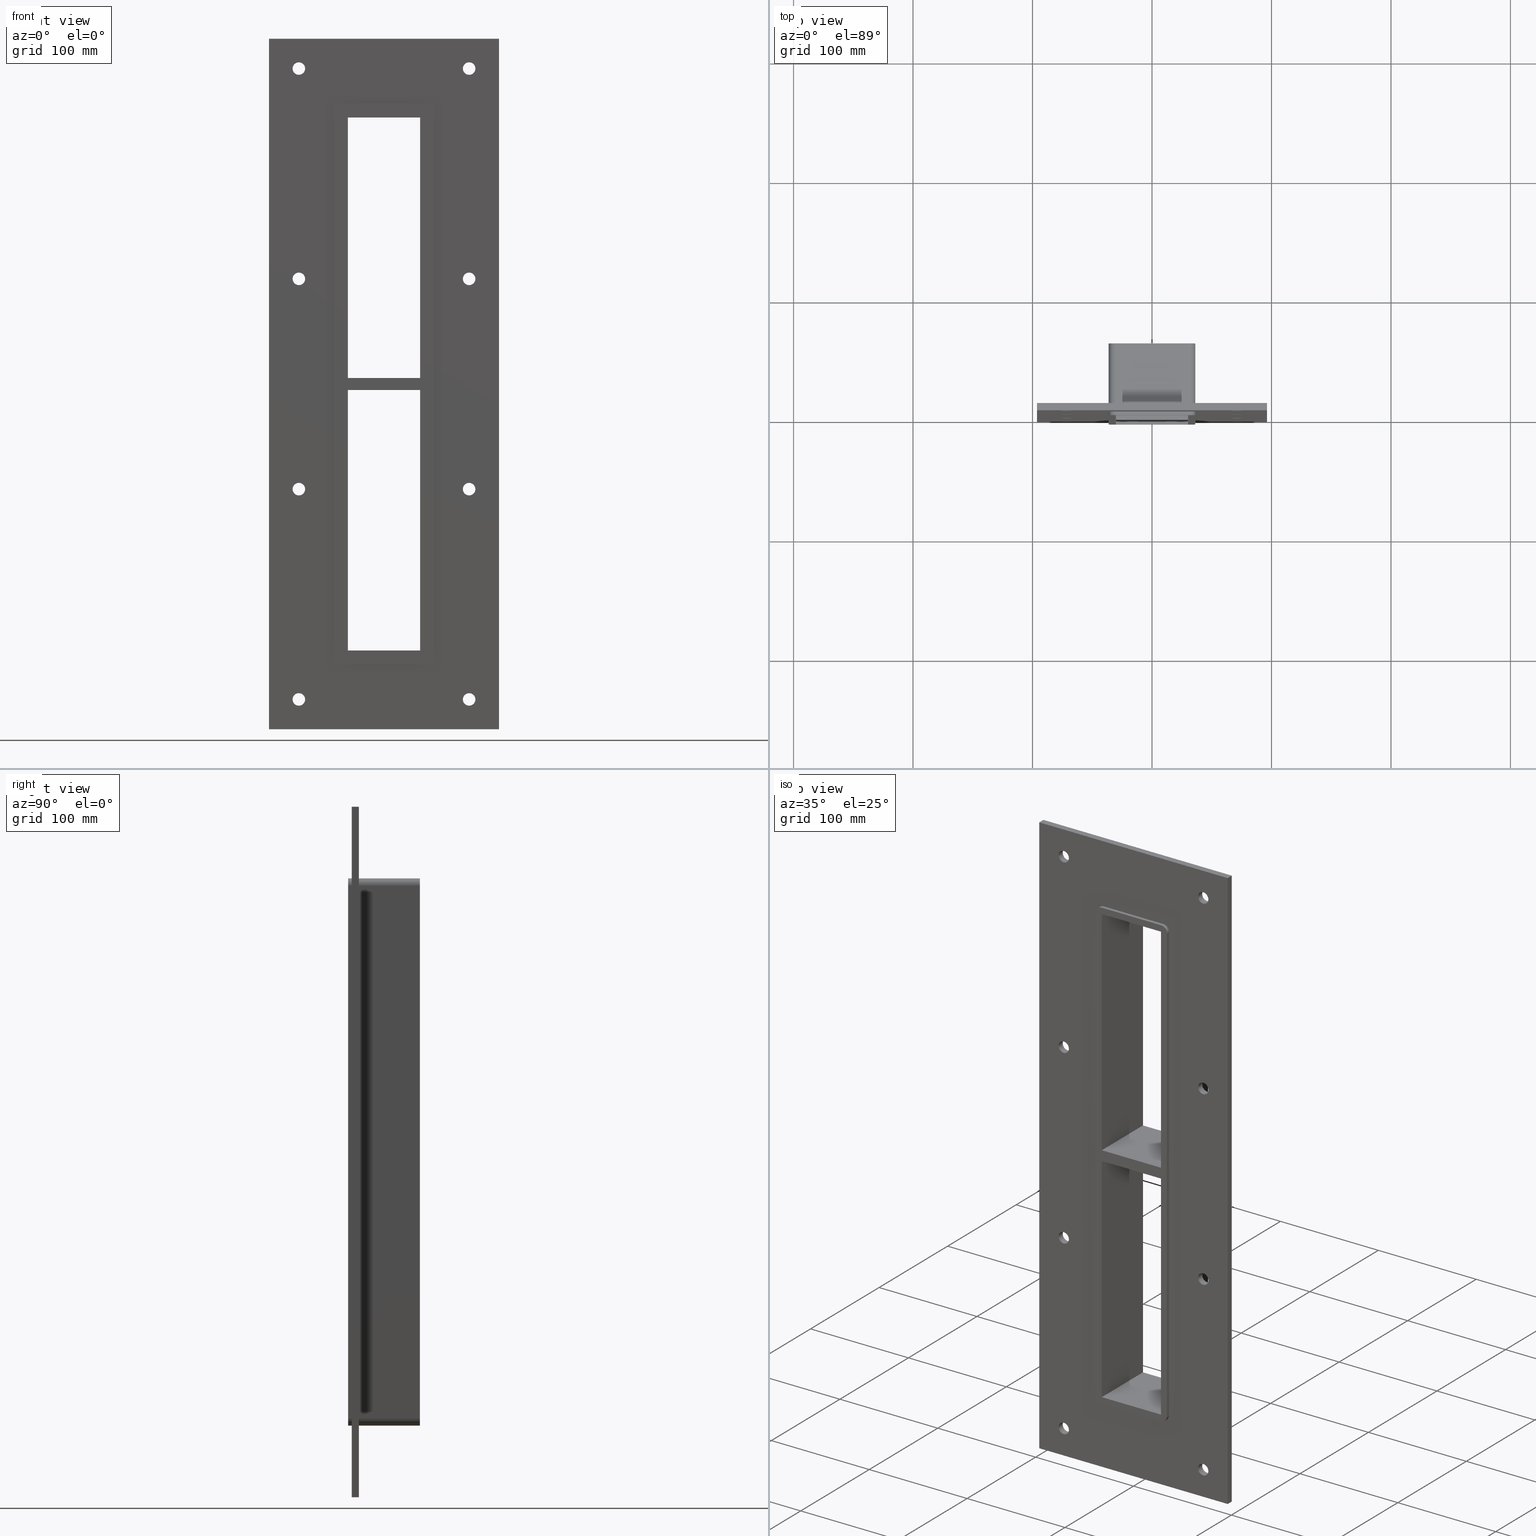
[diagram: canonical four-view strip — front | top / right | iso, engineering-drawing reading convention]
A machine part, canonical four-view strip (front | top / right | iso — engineering-drawing reading convention). The complete STEP part file that produces these views, byte-faithful:
ISO-10303-21;
HEADER;
/****************************************************************
 * Generated by software with PDElib inside                    *
 * PDElib Version v51a, created Wed 11/30/2011                  *
 * ITI Transcendata (http://www.transcendata.com/)              *
 ****************************************************************/
FILE_DESCRIPTION((''),'2;1');
FILE_NAME('L:\\roxtec-se\\Projects\\Ongoing_Projects\\12403 Transit Designer\\Product-data\\Product Data\\Reviwed & Approved\\Review\\GH\\STEP\\GH5+5X1.stp','2015-02-20T11:31:12',('se-emikul'),(''),'Autodesk Inventor 2013','Autodesk Inventor 2013','');
FILE_SCHEMA(('AUTOMOTIVE_DESIGN { 1 0 10303 214 1 1 1 1 }'));
ENDSEC;
DATA;
#5=APPLICATION_CONTEXT('automotive design');
#6=APPLICATION_PROTOCOL_DEFINITION('International Standard','automotive_design',2001,#5);
#7=PRODUCT_CONTEXT('',#5,'mechanical');
#8=PRODUCT('GH5+5X1','GH5+5X1',$,(#7));
#9=PRODUCT_RELATED_PRODUCT_CATEGORY('part',$,(#8));
#10=PRODUCT_DEFINITION_FORMATION('',$,#8);
#11=PRODUCT_DEFINITION_CONTEXT('part definition',#5,'design');
#12=PRODUCT_DEFINITION('',$,#10,#11);
#18=(NAMED_UNIT(*)PLANE_ANGLE_UNIT()SI_UNIT($,.RADIAN.));
#19=DIMENSIONAL_EXPONENTS(0.0,0.0,0.0,0.0,0.0,0.0,0.0);
#20=PLANE_ANGLE_MEASURE_WITH_UNIT(PLANE_ANGLE_MEASURE(0.0174532925),#18);
#24=(CONVERSION_BASED_UNIT('DEGREE',#20)NAMED_UNIT(#19)PLANE_ANGLE_UNIT());
#28=(NAMED_UNIT(*)SI_UNIT($,.STERADIAN.)SOLID_ANGLE_UNIT());
#32=(LENGTH_UNIT()NAMED_UNIT(*)SI_UNIT(.MILLI.,.METRE.));
#34=UNCERTAINTY_MEASURE_WITH_UNIT(LENGTH_MEASURE(0.01),#32,'DISTANCE_ACCURACY_VALUE','');
#36=(GEOMETRIC_REPRESENTATION_CONTEXT(3)GLOBAL_UNCERTAINTY_ASSIGNED_CONTEXT((#34))GLOBAL_UNIT_ASSIGNED_CONTEXT((#24,#28,#32))REPRESENTATION_CONTEXT('None','None'));
#37=AXIS2_PLACEMENT_3D('',#38,#39,#40);
#38=CARTESIAN_POINT('',(0.0,0.0,0.0));
#39=DIRECTION('',(0.0,0.0,1.0));
#40=DIRECTION('',(1.0,0.0,0.0));
#41=SHAPE_REPRESENTATION('',(#37),#36);
#42=PRODUCT_DEFINITION_SHAPE('','',#12);
#43=SHAPE_DEFINITION_REPRESENTATION(#42,#41);
#49=(NAMED_UNIT(*)PLANE_ANGLE_UNIT()SI_UNIT($,.RADIAN.));
#50=DIMENSIONAL_EXPONENTS(0.0,0.0,0.0,0.0,0.0,0.0,0.0);
#51=PLANE_ANGLE_MEASURE_WITH_UNIT(PLANE_ANGLE_MEASURE(0.0174532925),#49);
#55=(CONVERSION_BASED_UNIT('DEGREE',#51)NAMED_UNIT(#50)PLANE_ANGLE_UNIT());
#59=(NAMED_UNIT(*)SI_UNIT($,.STERADIAN.)SOLID_ANGLE_UNIT());
#63=(LENGTH_UNIT()NAMED_UNIT(*)SI_UNIT(.MILLI.,.METRE.));
#65=UNCERTAINTY_MEASURE_WITH_UNIT(LENGTH_MEASURE(0.000001),#63,'DISTANCE_ACCURACY_VALUE','');
#67=(GEOMETRIC_REPRESENTATION_CONTEXT(3)GLOBAL_UNCERTAINTY_ASSIGNED_CONTEXT((#65))GLOBAL_UNIT_ASSIGNED_CONTEXT((#55,#59,#63))REPRESENTATION_CONTEXT('','3D'));
#68=CARTESIAN_POINT('',(-71.250000000000128,612.16031397012341,-264.00000000000006));
#69=DIRECTION('',(0.0,-1.0,0.0));
#70=DIRECTION('',(1.0,0.0,0.0));
#71=AXIS2_PLACEMENT_3D('',#68,#69,#70);
#72=CYLINDRICAL_SURFACE('',#71,5.25);
#73=CARTESIAN_POINT('',(-76.500000000000128,6.000000000000014,-264.00000000000006));
#74=VERTEX_POINT('',#73);
#75=CARTESIAN_POINT('',(-71.250000000000128,6.000000000000014,-264.00000000000006));
#76=DIRECTION('',(0.0,-1.0,0.0));
#77=DIRECTION('',(1.0,0.0,0.0));
#78=AXIS2_PLACEMENT_3D('',#75,#76,#77);
#79=CIRCLE('',#78,5.25);
#80=EDGE_CURVE('',#74,#74,#79,.T.);
#81=ORIENTED_EDGE('',*,*,#80,.F.);
#82=EDGE_LOOP('',(#81));
#83=FACE_OUTER_BOUND('',#82,.T.);
#84=CARTESIAN_POINT('',(-66.000000000000114,0.0,-264.00000000000006));
#85=VERTEX_POINT('',#84);
#86=CARTESIAN_POINT('',(-71.250000000000128,0.0,-264.00000000000006));
#87=DIRECTION('',(0.0,1.0,0.0));
#88=DIRECTION('',(1.0,0.0,0.0));
#89=AXIS2_PLACEMENT_3D('',#86,#87,#88);
#90=CIRCLE('',#89,5.25);
#91=EDGE_CURVE('',#85,#85,#90,.T.);
#92=ORIENTED_EDGE('',*,*,#91,.F.);
#93=EDGE_LOOP('',(#92));
#94=FACE_BOUND('',#93,.T.);
#95=ADVANCED_FACE('',(#83,#94),#72,.F.);
#96=CARTESIAN_POINT('',(71.249999999999872,612.16031397012341,-88.000000000000043));
#97=DIRECTION('',(0.0,-1.0,0.0));
#98=DIRECTION('',(1.0,0.0,0.0));
#99=AXIS2_PLACEMENT_3D('',#96,#97,#98);
#100=CYLINDRICAL_SURFACE('',#99,5.25);
#101=CARTESIAN_POINT('',(65.999999999999872,6.000000000000014,-88.000000000000043));
#102=VERTEX_POINT('',#101);
#103=CARTESIAN_POINT('',(71.249999999999872,6.000000000000014,-88.000000000000043));
#104=DIRECTION('',(0.0,-1.0,0.0));
#105=DIRECTION('',(1.0,0.0,0.0));
#106=AXIS2_PLACEMENT_3D('',#103,#104,#105);
#107=CIRCLE('',#106,5.25);
#108=EDGE_CURVE('',#102,#102,#107,.T.);
#109=ORIENTED_EDGE('',*,*,#108,.F.);
#110=EDGE_LOOP('',(#109));
#111=FACE_OUTER_BOUND('',#110,.T.);
#112=CARTESIAN_POINT('',(76.499999999999886,0.0,-88.000000000000043));
#113=VERTEX_POINT('',#112);
#114=CARTESIAN_POINT('',(71.249999999999872,0.0,-88.000000000000043));
#115=DIRECTION('',(0.0,1.0,0.0));
#116=DIRECTION('',(1.0,0.0,0.0));
#117=AXIS2_PLACEMENT_3D('',#114,#115,#116);
#118=CIRCLE('',#117,5.25);
#119=EDGE_CURVE('',#113,#113,#118,.T.);
#120=ORIENTED_EDGE('',*,*,#119,.F.);
#121=EDGE_LOOP('',(#120));
#122=FACE_BOUND('',#121,.T.);
#123=ADVANCED_FACE('',(#111,#122),#100,.F.);
#124=CARTESIAN_POINT('',(-71.250000000000128,612.16031397012341,-88.000000000000043));
#125=DIRECTION('',(0.0,-1.0,0.0));
#126=DIRECTION('',(1.0,0.0,0.0));
#127=AXIS2_PLACEMENT_3D('',#124,#125,#126);
#128=CYLINDRICAL_SURFACE('',#127,5.25);
#129=CARTESIAN_POINT('',(-76.500000000000128,6.000000000000014,-88.000000000000043));
#130=VERTEX_POINT('',#129);
#131=CARTESIAN_POINT('',(-71.250000000000128,6.000000000000014,-88.000000000000043));
#132=DIRECTION('',(0.0,-1.0,0.0));
#133=DIRECTION('',(1.0,0.0,0.0));
#134=AXIS2_PLACEMENT_3D('',#131,#132,#133);
#135=CIRCLE('',#134,5.25);
#136=EDGE_CURVE('',#130,#130,#135,.T.);
#137=ORIENTED_EDGE('',*,*,#136,.F.);
#138=EDGE_LOOP('',(#137));
#139=FACE_OUTER_BOUND('',#138,.T.);
#140=CARTESIAN_POINT('',(-66.000000000000114,0.0,-88.000000000000043));
#141=VERTEX_POINT('',#140);
#142=CARTESIAN_POINT('',(-71.250000000000128,0.0,-88.000000000000043));
#143=DIRECTION('',(0.0,1.0,0.0));
#144=DIRECTION('',(1.0,0.0,0.0));
#145=AXIS2_PLACEMENT_3D('',#142,#143,#144);
#146=CIRCLE('',#145,5.25);
#147=EDGE_CURVE('',#141,#141,#146,.T.);
#148=ORIENTED_EDGE('',*,*,#147,.F.);
#149=EDGE_LOOP('',(#148));
#150=FACE_BOUND('',#149,.T.);
#151=ADVANCED_FACE('',(#139,#150),#128,.F.);
#152=CARTESIAN_POINT('',(71.249999999999872,612.16031397012341,87.999999999999972));
#153=DIRECTION('',(0.0,-1.0,0.0));
#154=DIRECTION('',(1.0,0.0,0.0));
#155=AXIS2_PLACEMENT_3D('',#152,#153,#154);
#156=CYLINDRICAL_SURFACE('',#155,5.25);
#157=CARTESIAN_POINT('',(65.999999999999872,6.000000000000014,87.999999999999972));
#158=VERTEX_POINT('',#157);
#159=CARTESIAN_POINT('',(71.249999999999872,6.000000000000014,87.999999999999972));
#160=DIRECTION('',(0.0,-1.0,0.0));
#161=DIRECTION('',(1.0,0.0,0.0));
#162=AXIS2_PLACEMENT_3D('',#159,#160,#161);
#163=CIRCLE('',#162,5.25);
#164=EDGE_CURVE('',#158,#158,#163,.T.);
#165=ORIENTED_EDGE('',*,*,#164,.F.);
#166=EDGE_LOOP('',(#165));
#167=FACE_OUTER_BOUND('',#166,.T.);
#168=CARTESIAN_POINT('',(76.499999999999886,0.0,87.999999999999972));
#169=VERTEX_POINT('',#168);
#170=CARTESIAN_POINT('',(71.249999999999872,0.0,87.999999999999972));
#171=DIRECTION('',(0.0,1.0,0.0));
#172=DIRECTION('',(1.0,0.0,0.0));
#173=AXIS2_PLACEMENT_3D('',#170,#171,#172);
#174=CIRCLE('',#173,5.25);
#175=EDGE_CURVE('',#169,#169,#174,.T.);
#176=ORIENTED_EDGE('',*,*,#175,.F.);
#177=EDGE_LOOP('',(#176));
#178=FACE_BOUND('',#177,.T.);
#179=ADVANCED_FACE('',(#167,#178),#156,.F.);
#180=CARTESIAN_POINT('',(-71.250000000000128,612.16031397012341,87.999999999999972));
#181=DIRECTION('',(0.0,-1.0,0.0));
#182=DIRECTION('',(1.0,0.0,0.0));
#183=AXIS2_PLACEMENT_3D('',#180,#181,#182);
#184=CYLINDRICAL_SURFACE('',#183,5.25);
#185=CARTESIAN_POINT('',(-76.500000000000128,6.000000000000014,87.999999999999972));
#186=VERTEX_POINT('',#185);
#187=CARTESIAN_POINT('',(-71.250000000000128,6.000000000000014,87.999999999999972));
#188=DIRECTION('',(0.0,-1.0,0.0));
#189=DIRECTION('',(1.0,0.0,0.0));
#190=AXIS2_PLACEMENT_3D('',#187,#188,#189);
#191=CIRCLE('',#190,5.25);
#192=EDGE_CURVE('',#186,#186,#191,.T.);
#193=ORIENTED_EDGE('',*,*,#192,.F.);
#194=EDGE_LOOP('',(#193));
#195=FACE_OUTER_BOUND('',#194,.T.);
#196=CARTESIAN_POINT('',(-66.000000000000114,0.0,87.999999999999972));
#197=VERTEX_POINT('',#196);
#198=CARTESIAN_POINT('',(-71.250000000000128,0.0,87.999999999999972));
#199=DIRECTION('',(0.0,1.0,0.0));
#200=DIRECTION('',(1.0,0.0,0.0));
#201=AXIS2_PLACEMENT_3D('',#198,#199,#200);
#202=CIRCLE('',#201,5.25);
#203=EDGE_CURVE('',#197,#197,#202,.T.);
#204=ORIENTED_EDGE('',*,*,#203,.F.);
#205=EDGE_LOOP('',(#204));
#206=FACE_BOUND('',#205,.T.);
#207=ADVANCED_FACE('',(#195,#206),#184,.F.);
#208=CARTESIAN_POINT('',(71.249999999999872,612.16031397012341,-264.00000000000006));
#209=DIRECTION('',(0.0,-1.0,0.0));
#210=DIRECTION('',(1.0,0.0,0.0));
#211=AXIS2_PLACEMENT_3D('',#208,#209,#210);
#212=CYLINDRICAL_SURFACE('',#211,5.25);
#213=CARTESIAN_POINT('',(65.999999999999872,6.000000000000014,-264.00000000000006));
#214=VERTEX_POINT('',#213);
#215=CARTESIAN_POINT('',(71.249999999999872,6.000000000000014,-264.00000000000006));
#216=DIRECTION('',(0.0,-1.0,0.0));
#217=DIRECTION('',(1.0,0.0,0.0));
#218=AXIS2_PLACEMENT_3D('',#215,#216,#217);
#219=CIRCLE('',#218,5.25);
#220=EDGE_CURVE('',#214,#214,#219,.T.);
#221=ORIENTED_EDGE('',*,*,#220,.F.);
#222=EDGE_LOOP('',(#221));
#223=FACE_OUTER_BOUND('',#222,.T.);
#224=CARTESIAN_POINT('',(76.499999999999886,0.0,-264.00000000000006));
#225=VERTEX_POINT('',#224);
#226=CARTESIAN_POINT('',(71.249999999999872,0.0,-264.00000000000006));
#227=DIRECTION('',(0.0,1.0,0.0));
#228=DIRECTION('',(1.0,0.0,0.0));
#229=AXIS2_PLACEMENT_3D('',#226,#227,#228);
#230=CIRCLE('',#229,5.25);
#231=EDGE_CURVE('',#225,#225,#230,.T.);
#232=ORIENTED_EDGE('',*,*,#231,.F.);
#233=EDGE_LOOP('',(#232));
#234=FACE_BOUND('',#233,.T.);
#235=ADVANCED_FACE('',(#223,#234),#212,.F.);
#236=CARTESIAN_POINT('',(-71.250000000000128,612.16031397012341,264.0));
#237=DIRECTION('',(0.0,-1.0,0.0));
#238=DIRECTION('',(1.0,0.0,0.0));
#239=AXIS2_PLACEMENT_3D('',#236,#237,#238);
#240=CYLINDRICAL_SURFACE('',#239,5.25);
#241=CARTESIAN_POINT('',(-76.500000000000128,6.000000000000014,264.0));
#242=VERTEX_POINT('',#241);
#243=CARTESIAN_POINT('',(-71.250000000000128,6.000000000000014,264.0));
#244=DIRECTION('',(0.0,-1.0,0.0));
#245=DIRECTION('',(1.0,0.0,0.0));
#246=AXIS2_PLACEMENT_3D('',#243,#244,#245);
#247=CIRCLE('',#246,5.25);
#248=EDGE_CURVE('',#242,#242,#247,.T.);
#249=ORIENTED_EDGE('',*,*,#248,.F.);
#250=EDGE_LOOP('',(#249));
#251=FACE_OUTER_BOUND('',#250,.T.);
#252=CARTESIAN_POINT('',(-66.000000000000114,0.0,264.0));
#253=VERTEX_POINT('',#252);
#254=CARTESIAN_POINT('',(-71.250000000000128,0.0,264.0));
#255=DIRECTION('',(0.0,1.0,0.0));
#256=DIRECTION('',(1.0,0.0,0.0));
#257=AXIS2_PLACEMENT_3D('',#254,#255,#256);
#258=CIRCLE('',#257,5.25);
#259=EDGE_CURVE('',#253,#253,#258,.T.);
#260=ORIENTED_EDGE('',*,*,#259,.F.);
#261=EDGE_LOOP('',(#260));
#262=FACE_BOUND('',#261,.T.);
#263=ADVANCED_FACE('',(#251,#262),#240,.F.);
#264=CARTESIAN_POINT('',(71.249999999999872,612.16031397012341,264.0));
#265=DIRECTION('',(0.0,-1.0,0.0));
#266=DIRECTION('',(1.0,0.0,0.0));
#267=AXIS2_PLACEMENT_3D('',#264,#265,#266);
#268=CYLINDRICAL_SURFACE('',#267,5.25);
#269=CARTESIAN_POINT('',(65.999999999999872,6.000000000000014,264.0));
#270=VERTEX_POINT('',#269);
#271=CARTESIAN_POINT('',(71.249999999999872,6.000000000000014,264.0));
#272=DIRECTION('',(0.0,-1.0,0.0));
#273=DIRECTION('',(1.0,0.0,0.0));
#274=AXIS2_PLACEMENT_3D('',#271,#272,#273);
#275=CIRCLE('',#274,5.25);
#276=EDGE_CURVE('',#270,#270,#275,.T.);
#277=ORIENTED_EDGE('',*,*,#276,.F.);
#278=EDGE_LOOP('',(#277));
#279=FACE_OUTER_BOUND('',#278,.T.);
#280=CARTESIAN_POINT('',(76.499999999999886,0.0,264.0));
#281=VERTEX_POINT('',#280);
#282=CARTESIAN_POINT('',(71.249999999999872,0.0,264.0));
#283=DIRECTION('',(0.0,1.0,0.0));
#284=DIRECTION('',(1.0,0.0,0.0));
#285=AXIS2_PLACEMENT_3D('',#282,#283,#284);
#286=CIRCLE('',#285,5.25);
#287=EDGE_CURVE('',#281,#281,#286,.T.);
#288=ORIENTED_EDGE('',*,*,#287,.F.);
#289=EDGE_LOOP('',(#288));
#290=FACE_BOUND('',#289,.T.);
#291=ADVANCED_FACE('',(#279,#290),#268,.F.);
#292=CARTESIAN_POINT('',(30.249999999996362,-3.0,-5.000000000010835));
#293=DIRECTION('',(0.0,0.0,-1.0));
#294=DIRECTION('',(-1.0,0.0,0.0));
#295=AXIS2_PLACEMENT_3D('',#292,#293,#294);
#296=PLANE('',#295);
#297=CARTESIAN_POINT('',(30.249999999996362,-3.0,-5.000000000010835));
#298=VERTEX_POINT('',#297);
#299=CARTESIAN_POINT('',(-30.249999999997076,-3.0,-5.000000000011369));
#300=VERTEX_POINT('',#299);
#301=CARTESIAN_POINT('',(30.249999999996362,-3.0,-5.000000000010835));
#302=DIRECTION('',(-1.0,0.0,0.0));
#303=VECTOR('',#302,60.499999999993435);
#304=LINE('',#301,#303);
#305=EDGE_CURVE('',#298,#300,#304,.T.);
#306=ORIENTED_EDGE('',*,*,#305,.T.);
#307=CARTESIAN_POINT('',(-30.249999999997076,57.0,-5.000000000011369));
#308=VERTEX_POINT('',#307);
#309=CARTESIAN_POINT('',(-30.249999999999986,57.000000000000007,-5.00000000001137));
#310=DIRECTION('',(0.0,-1.0,0.0));
#311=VECTOR('',#310,60.000000000000007);
#312=LINE('',#309,#311);
#313=EDGE_CURVE('',#308,#300,#312,.T.);
#314=ORIENTED_EDGE('',*,*,#313,.F.);
#315=CARTESIAN_POINT('',(30.249999999996358,57.0,-5.000000000010836));
#316=VERTEX_POINT('',#315);
#317=CARTESIAN_POINT('',(30.249999999996362,57.0,-5.000000000010835));
#318=DIRECTION('',(-1.0,0.0,0.0));
#319=VECTOR('',#318,60.499999999993435);
#320=LINE('',#317,#319);
#321=EDGE_CURVE('',#316,#308,#320,.T.);
#322=ORIENTED_EDGE('',*,*,#321,.F.);
#323=CARTESIAN_POINT('',(30.249999999999986,-3.0,-5.000000000010836));
#324=DIRECTION('',(0.0,1.0,0.0));
#325=VECTOR('',#324,60.000000000000007);
#326=LINE('',#323,#325);
#327=EDGE_CURVE('',#298,#316,#326,.T.);
#328=ORIENTED_EDGE('',*,*,#327,.F.);
#329=EDGE_LOOP('',(#306,#314,#322,#328));
#330=FACE_OUTER_BOUND('',#329,.T.);
#331=ADVANCED_FACE('',(#330),#296,.T.);
#332=CARTESIAN_POINT('',(-30.249999999997076,-3.0,5.0));
#333=DIRECTION('',(0.0,0.0,1.0));
#334=DIRECTION('',(1.0,0.0,0.0));
#335=AXIS2_PLACEMENT_3D('',#332,#333,#334);
#336=PLANE('',#335);
#337=CARTESIAN_POINT('',(-30.249999999997076,-3.0,5.0));
#338=VERTEX_POINT('',#337);
#339=CARTESIAN_POINT('',(30.249999999999019,-3.0,5.0));
#340=VERTEX_POINT('',#339);
#341=CARTESIAN_POINT('',(-30.249999999997076,-3.0,5.0));
#342=DIRECTION('',(1.0,0.0,0.0));
#343=VECTOR('',#342,60.499999999996099);
#344=LINE('',#341,#343);
#345=EDGE_CURVE('',#338,#340,#344,.T.);
#346=ORIENTED_EDGE('',*,*,#345,.T.);
#347=CARTESIAN_POINT('',(30.249999999999023,57.0,5.0));
#348=VERTEX_POINT('',#347);
#349=CARTESIAN_POINT('',(30.249999999999986,57.000000000000007,5.0));
#350=DIRECTION('',(0.0,-1.0,0.0));
#351=VECTOR('',#350,60.000000000000007);
#352=LINE('',#349,#351);
#353=EDGE_CURVE('',#348,#340,#352,.T.);
#354=ORIENTED_EDGE('',*,*,#353,.F.);
#355=CARTESIAN_POINT('',(-30.249999999997076,57.0,5.0));
#356=VERTEX_POINT('',#355);
#357=CARTESIAN_POINT('',(-30.249999999997076,57.0,5.0));
#358=DIRECTION('',(1.0,0.0,0.0));
#359=VECTOR('',#358,60.499999999996099);
#360=LINE('',#357,#359);
#361=EDGE_CURVE('',#356,#348,#360,.T.);
#362=ORIENTED_EDGE('',*,*,#361,.F.);
#363=CARTESIAN_POINT('',(-30.249999999999986,-3.0,5.0));
#364=DIRECTION('',(0.0,1.0,0.0));
#365=VECTOR('',#364,60.000000000000007);
#366=LINE('',#363,#365);
#367=EDGE_CURVE('',#338,#356,#366,.T.);
#368=ORIENTED_EDGE('',*,*,#367,.F.);
#369=EDGE_LOOP('',(#346,#354,#362,#368));
#370=FACE_OUTER_BOUND('',#369,.T.);
#371=ADVANCED_FACE('',(#370),#336,.T.);
#372=CARTESIAN_POINT('',(-30.249999999999986,0.0,-223.0));
#373=DIRECTION('',(-1.0,0.0,0.0));
#374=DIRECTION('',(0.0,0.0,1.0));
#375=AXIS2_PLACEMENT_3D('',#372,#373,#374);
#376=PLANE('',#375);
#377=ORIENTED_EDGE('',*,*,#367,.T.);
#378=CARTESIAN_POINT('',(-30.249999999999986,57.0,223.0));
#379=VERTEX_POINT('',#378);
#380=CARTESIAN_POINT('',(-30.249999999999986,57.0,223.0));
#381=DIRECTION('',(0.0,0.0,-1.0));
#382=VECTOR('',#381,218.0);
#383=LINE('',#380,#382);
#384=EDGE_CURVE('',#379,#356,#383,.T.);
#385=ORIENTED_EDGE('',*,*,#384,.F.);
#386=CARTESIAN_POINT('',(-30.249999999999986,-3.0,223.0));
#387=VERTEX_POINT('',#386);
#388=CARTESIAN_POINT('',(-30.249999999999986,-3.0,223.0));
#389=DIRECTION('',(0.0,1.0,0.0));
#390=VECTOR('',#389,60.0);
#391=LINE('',#388,#390);
#392=EDGE_CURVE('',#387,#379,#391,.T.);
#393=ORIENTED_EDGE('',*,*,#392,.F.);
#394=CARTESIAN_POINT('',(-30.249999999999986,-3.0,5.0));
#395=DIRECTION('',(0.0,0.0,1.0));
#396=VECTOR('',#395,218.0);
#397=LINE('',#394,#396);
#398=EDGE_CURVE('',#338,#387,#397,.T.);
#399=ORIENTED_EDGE('',*,*,#398,.F.);
#400=EDGE_LOOP('',(#377,#385,#393,#399));
#401=FACE_OUTER_BOUND('',#400,.T.);
#402=ADVANCED_FACE('',(#401),#376,.F.);
#403=CARTESIAN_POINT('',(30.249999999999986,0.0,223.0));
#404=DIRECTION('',(1.0,0.0,0.0));
#405=DIRECTION('',(0.0,0.0,-1.0));
#406=AXIS2_PLACEMENT_3D('',#403,#404,#405);
#407=PLANE('',#406);
#408=ORIENTED_EDGE('',*,*,#327,.T.);
#409=CARTESIAN_POINT('',(30.249999999999986,57.0,-223.0));
#410=VERTEX_POINT('',#409);
#411=CARTESIAN_POINT('',(30.249999999999986,57.0,-222.99999999999997));
#412=DIRECTION('',(0.0,0.0,1.0));
#413=VECTOR('',#412,217.99999999998914);
#414=LINE('',#411,#413);
#415=EDGE_CURVE('',#410,#316,#414,.T.);
#416=ORIENTED_EDGE('',*,*,#415,.F.);
#417=CARTESIAN_POINT('',(30.249999999999986,-3.0,-223.0));
#418=VERTEX_POINT('',#417);
#419=CARTESIAN_POINT('',(30.249999999999986,56.999999999999993,-223.0));
#420=DIRECTION('',(0.0,-1.0,0.0));
#421=VECTOR('',#420,59.999999999999993);
#422=LINE('',#419,#421);
#423=EDGE_CURVE('',#410,#418,#422,.T.);
#424=ORIENTED_EDGE('',*,*,#423,.T.);
#425=CARTESIAN_POINT('',(30.249999999999986,-3.0,-5.000000000010829));
#426=DIRECTION('',(0.0,0.0,-1.0));
#427=VECTOR('',#426,217.99999999998914);
#428=LINE('',#425,#427);
#429=EDGE_CURVE('',#298,#418,#428,.T.);
#430=ORIENTED_EDGE('',*,*,#429,.F.);
#431=EDGE_LOOP('',(#408,#416,#424,#430));
#432=FACE_OUTER_BOUND('',#431,.T.);
#433=ADVANCED_FACE('',(#432),#407,.F.);
#434=CARTESIAN_POINT('',(30.249999999999986,0.0,223.0));
#435=DIRECTION('',(1.0,0.0,0.0));
#436=DIRECTION('',(0.0,0.0,-1.0));
#437=AXIS2_PLACEMENT_3D('',#434,#435,#436);
#438=PLANE('',#437);
#439=ORIENTED_EDGE('',*,*,#353,.T.);
#440=CARTESIAN_POINT('',(30.249999999999986,-3.0,223.0));
#441=VERTEX_POINT('',#440);
#442=CARTESIAN_POINT('',(30.249999999999986,-3.0,223.0));
#443=DIRECTION('',(0.0,0.0,-1.0));
#444=VECTOR('',#443,218.0);
#445=LINE('',#442,#444);
#446=EDGE_CURVE('',#441,#340,#445,.T.);
#447=ORIENTED_EDGE('',*,*,#446,.F.);
#448=CARTESIAN_POINT('',(30.249999999999986,57.0,223.0));
#449=VERTEX_POINT('',#448);
#450=CARTESIAN_POINT('',(30.249999999999986,-3.0,223.0));
#451=DIRECTION('',(0.0,1.0,0.0));
#452=VECTOR('',#451,60.0);
#453=LINE('',#450,#452);
#454=EDGE_CURVE('',#441,#449,#453,.T.);
#455=ORIENTED_EDGE('',*,*,#454,.T.);
#456=CARTESIAN_POINT('',(30.249999999999986,57.0,5.0));
#457=DIRECTION('',(0.0,0.0,1.0));
#458=VECTOR('',#457,218.0);
#459=LINE('',#456,#458);
#460=EDGE_CURVE('',#348,#449,#459,.T.);
#461=ORIENTED_EDGE('',*,*,#460,.F.);
#462=EDGE_LOOP('',(#439,#447,#455,#461));
#463=FACE_OUTER_BOUND('',#462,.T.);
#464=ADVANCED_FACE('',(#463),#438,.F.);
#465=CARTESIAN_POINT('',(-1.106621E-014,6.000000000000001,-4.099108E-014));
#466=DIRECTION('',(0.0,1.0,0.0));
#467=DIRECTION('',(0.0,0.0,1.0));
#468=AXIS2_PLACEMENT_3D('',#465,#466,#467);
#469=PLANE('',#468);
#470=CARTESIAN_POINT('',(-96.25,6.000000000000001,289.0));
#471=VERTEX_POINT('',#470);
#472=CARTESIAN_POINT('',(96.25,6.000000000000001,289.0));
#473=VERTEX_POINT('',#472);
#474=CARTESIAN_POINT('',(-96.25,6.000000000000001,289.0));
#475=DIRECTION('',(1.0,0.0,0.0));
#476=VECTOR('',#475,192.5);
#477=LINE('',#474,#476);
#478=EDGE_CURVE('',#471,#473,#477,.T.);
#479=ORIENTED_EDGE('',*,*,#478,.T.);
#480=CARTESIAN_POINT('',(96.25,6.000000000000001,-289.00000000000006));
#481=VERTEX_POINT('',#480);
#482=CARTESIAN_POINT('',(96.249999999999986,6.000000000000001,289.0));
#483=DIRECTION('',(0.0,0.0,-1.0));
#484=VECTOR('',#483,578.0);
#485=LINE('',#482,#484);
#486=EDGE_CURVE('',#473,#481,#485,.T.);
#487=ORIENTED_EDGE('',*,*,#486,.T.);
#488=CARTESIAN_POINT('',(-96.25,6.000000000000001,-289.00000000000006));
#489=VERTEX_POINT('',#488);
#490=CARTESIAN_POINT('',(96.249999999999986,6.000000000000001,-289.00000000000006));
#491=DIRECTION('',(-1.0,0.0,0.0));
#492=VECTOR('',#491,192.5);
#493=LINE('',#490,#492);
#494=EDGE_CURVE('',#481,#489,#493,.T.);
#495=ORIENTED_EDGE('',*,*,#494,.T.);
#496=CARTESIAN_POINT('',(-96.25,6.000000000000001,-289.00000000000006));
#497=DIRECTION('',(0.0,0.0,1.0));
#498=VECTOR('',#497,578.0);
#499=LINE('',#496,#498);
#500=EDGE_CURVE('',#489,#471,#499,.T.);
#501=ORIENTED_EDGE('',*,*,#500,.T.);
#502=EDGE_LOOP('',(#479,#487,#495,#501));
#503=FACE_OUTER_BOUND('',#502,.T.);
#504=ORIENTED_EDGE('',*,*,#80,.T.);
#505=EDGE_LOOP('',(#504));
#506=FACE_BOUND('',#505,.T.);
#507=ORIENTED_EDGE('',*,*,#108,.T.);
#508=EDGE_LOOP('',(#507));
#509=FACE_BOUND('',#508,.T.);
#510=ORIENTED_EDGE('',*,*,#136,.T.);
#511=EDGE_LOOP('',(#510));
#512=FACE_BOUND('',#511,.T.);
#513=ORIENTED_EDGE('',*,*,#164,.T.);
#514=EDGE_LOOP('',(#513));
#515=FACE_BOUND('',#514,.T.);
#516=ORIENTED_EDGE('',*,*,#192,.T.);
#517=EDGE_LOOP('',(#516));
#518=FACE_BOUND('',#517,.T.);
#519=ORIENTED_EDGE('',*,*,#220,.T.);
#520=EDGE_LOOP('',(#519));
#521=FACE_BOUND('',#520,.T.);
#522=ORIENTED_EDGE('',*,*,#248,.T.);
#523=EDGE_LOOP('',(#522));
#524=FACE_BOUND('',#523,.T.);
#525=ORIENTED_EDGE('',*,*,#276,.T.);
#526=EDGE_LOOP('',(#525));
#527=FACE_BOUND('',#526,.T.);
#528=CARTESIAN_POINT('',(-36.25,6.000000000000001,223.0));
#529=VERTEX_POINT('',#528);
#530=CARTESIAN_POINT('',(-30.250000000000004,6.000000000000001,229.00000000000003));
#531=VERTEX_POINT('',#530);
#532=CARTESIAN_POINT('',(-30.250000000000004,6.000000000000001,223.0));
#533=DIRECTION('',(0.0,1.0,0.0));
#534=DIRECTION('',(-0.707106781186546,0.0,0.707106781186549));
#535=AXIS2_PLACEMENT_3D('',#532,#533,#534);
#536=CIRCLE('',#535,6.000000000000001);
#537=EDGE_CURVE('',#529,#531,#536,.T.);
#538=ORIENTED_EDGE('',*,*,#537,.F.);
#539=CARTESIAN_POINT('',(-36.25,6.000000000000001,-222.99999999999997));
#540=VERTEX_POINT('',#539);
#541=CARTESIAN_POINT('',(-36.25,6.000000000000001,-222.99999999999997));
#542=DIRECTION('',(0.0,0.0,1.0));
#543=VECTOR('',#542,446.0);
#544=LINE('',#541,#543);
#545=EDGE_CURVE('',#540,#529,#544,.T.);
#546=ORIENTED_EDGE('',*,*,#545,.F.);
#547=CARTESIAN_POINT('',(-30.250000000000004,6.000000000000001,-229.0));
#548=VERTEX_POINT('',#547);
#549=CARTESIAN_POINT('',(-30.250000000000004,6.000000000000001,-222.99999999999997));
#550=DIRECTION('',(0.0,1.0,0.0));
#551=DIRECTION('',(-0.707106781186546,0.0,-0.707106781186549));
#552=AXIS2_PLACEMENT_3D('',#549,#550,#551);
#553=CIRCLE('',#552,6.000000000000001);
#554=EDGE_CURVE('',#548,#540,#553,.T.);
#555=ORIENTED_EDGE('',*,*,#554,.F.);
#556=CARTESIAN_POINT('',(30.250000000000004,6.000000000000001,-229.0));
#557=VERTEX_POINT('',#556);
#558=CARTESIAN_POINT('',(30.250000000000004,6.000000000000001,-229.0));
#559=DIRECTION('',(-1.0,0.0,0.0));
#560=VECTOR('',#559,60.500000000000007);
#561=LINE('',#558,#560);
#562=EDGE_CURVE('',#557,#548,#561,.T.);
#563=ORIENTED_EDGE('',*,*,#562,.F.);
#564=CARTESIAN_POINT('',(36.25,6.000000000000001,-222.99999999999997));
#565=VERTEX_POINT('',#564);
#566=CARTESIAN_POINT('',(30.250000000000004,6.000000000000001,-222.99999999999997));
#567=DIRECTION('',(0.0,1.0,0.0));
#568=DIRECTION('',(0.707106781186546,0.0,-0.707106781186549));
#569=AXIS2_PLACEMENT_3D('',#566,#567,#568);
#570=CIRCLE('',#569,6.000000000000001);
#571=EDGE_CURVE('',#565,#557,#570,.T.);
#572=ORIENTED_EDGE('',*,*,#571,.F.);
#573=CARTESIAN_POINT('',(36.25,6.000000000000001,223.0));
#574=VERTEX_POINT('',#573);
#575=CARTESIAN_POINT('',(36.25,6.000000000000001,223.0));
#576=DIRECTION('',(0.0,0.0,-1.0));
#577=VECTOR('',#576,446.0);
#578=LINE('',#575,#577);
#579=EDGE_CURVE('',#574,#565,#578,.T.);
#580=ORIENTED_EDGE('',*,*,#579,.F.);
#581=CARTESIAN_POINT('',(30.250000000000004,6.000000000000001,229.00000000000003));
#582=VERTEX_POINT('',#581);
#583=CARTESIAN_POINT('',(30.250000000000004,6.000000000000001,223.0));
#584=DIRECTION('',(0.0,1.0,0.0));
#585=DIRECTION('',(0.707106781186546,0.0,0.707106781186549));
#586=AXIS2_PLACEMENT_3D('',#583,#584,#585);
#587=CIRCLE('',#586,6.000000000000001);
#588=EDGE_CURVE('',#582,#574,#587,.T.);
#589=ORIENTED_EDGE('',*,*,#588,.F.);
#590=CARTESIAN_POINT('',(-30.250000000000004,6.000000000000001,229.00000000000003));
#591=DIRECTION('',(1.0,0.0,0.0));
#592=VECTOR('',#591,60.5);
#593=LINE('',#590,#592);
#594=EDGE_CURVE('',#531,#582,#593,.T.);
#595=ORIENTED_EDGE('',*,*,#594,.F.);
#596=EDGE_LOOP('',(#538,#546,#555,#563,#572,#580,#589,#595));
#597=FACE_BOUND('',#596,.T.);
#598=ADVANCED_FACE('',(#503,#506,#509,#512,#515,#518,#521,#524,#527,#597),#469,.T.);
#599=CARTESIAN_POINT('',(-1.106621E-014,0.0,-4.099108E-014));
#600=DIRECTION('',(0.0,1.0,0.0));
#601=DIRECTION('',(0.0,0.0,1.0));
#602=AXIS2_PLACEMENT_3D('',#599,#600,#601);
#603=PLANE('',#602);
#604=CARTESIAN_POINT('',(-96.25,0.0,289.0));
#605=VERTEX_POINT('',#604);
#606=CARTESIAN_POINT('',(96.249999999999986,0.0,289.0));
#607=VERTEX_POINT('',#606);
#608=CARTESIAN_POINT('',(-96.25,0.0,289.0));
#609=DIRECTION('',(1.0,0.0,0.0));
#610=VECTOR('',#609,192.5);
#611=LINE('',#608,#610);
#612=EDGE_CURVE('',#605,#607,#611,.T.);
#613=ORIENTED_EDGE('',*,*,#612,.F.);
#614=CARTESIAN_POINT('',(-96.25,0.0,-289.00000000000006));
#615=VERTEX_POINT('',#614);
#616=CARTESIAN_POINT('',(-96.25,0.0,-289.00000000000006));
#617=DIRECTION('',(0.0,0.0,1.0));
#618=VECTOR('',#617,578.0);
#619=LINE('',#616,#618);
#620=EDGE_CURVE('',#615,#605,#619,.T.);
#621=ORIENTED_EDGE('',*,*,#620,.F.);
#622=CARTESIAN_POINT('',(96.249999999999986,0.0,-289.00000000000006));
#623=VERTEX_POINT('',#622);
#624=CARTESIAN_POINT('',(96.249999999999986,0.0,-289.00000000000006));
#625=DIRECTION('',(-1.0,0.0,0.0));
#626=VECTOR('',#625,192.5);
#627=LINE('',#624,#626);
#628=EDGE_CURVE('',#623,#615,#627,.T.);
#629=ORIENTED_EDGE('',*,*,#628,.F.);
#630=CARTESIAN_POINT('',(96.249999999999986,0.0,289.0));
#631=DIRECTION('',(0.0,0.0,-1.0));
#632=VECTOR('',#631,578.0);
#633=LINE('',#630,#632);
#634=EDGE_CURVE('',#607,#623,#633,.T.);
#635=ORIENTED_EDGE('',*,*,#634,.F.);
#636=EDGE_LOOP('',(#613,#621,#629,#635));
#637=FACE_OUTER_BOUND('',#636,.T.);
#638=ORIENTED_EDGE('',*,*,#91,.T.);
#639=EDGE_LOOP('',(#638));
#640=FACE_BOUND('',#639,.T.);
#641=ORIENTED_EDGE('',*,*,#119,.T.);
#642=EDGE_LOOP('',(#641));
#643=FACE_BOUND('',#642,.T.);
#644=ORIENTED_EDGE('',*,*,#147,.T.);
#645=EDGE_LOOP('',(#644));
#646=FACE_BOUND('',#645,.T.);
#647=ORIENTED_EDGE('',*,*,#175,.T.);
#648=EDGE_LOOP('',(#647));
#649=FACE_BOUND('',#648,.T.);
#650=ORIENTED_EDGE('',*,*,#203,.T.);
#651=EDGE_LOOP('',(#650));
#652=FACE_BOUND('',#651,.T.);
#653=ORIENTED_EDGE('',*,*,#231,.T.);
#654=EDGE_LOOP('',(#653));
#655=FACE_BOUND('',#654,.T.);
#656=ORIENTED_EDGE('',*,*,#259,.T.);
#657=EDGE_LOOP('',(#656));
#658=FACE_BOUND('',#657,.T.);
#659=ORIENTED_EDGE('',*,*,#287,.T.);
#660=EDGE_LOOP('',(#659));
#661=FACE_BOUND('',#660,.T.);
#662=CARTESIAN_POINT('',(-30.250000000000004,0.0,229.00000000000003));
#663=VERTEX_POINT('',#662);
#664=CARTESIAN_POINT('',(-36.25,0.0,223.0));
#665=VERTEX_POINT('',#664);
#666=CARTESIAN_POINT('',(-30.250000000000004,0.0,223.0));
#667=DIRECTION('',(0.0,-1.0,0.0));
#668=DIRECTION('',(-0.707106781186546,0.0,0.707106781186549));
#669=AXIS2_PLACEMENT_3D('',#666,#667,#668);
#670=CIRCLE('',#669,6.000000000000001);
#671=EDGE_CURVE('',#663,#665,#670,.T.);
#672=ORIENTED_EDGE('',*,*,#671,.F.);
#673=CARTESIAN_POINT('',(30.250000000000004,0.0,229.00000000000003));
#674=VERTEX_POINT('',#673);
#675=CARTESIAN_POINT('',(30.249999999999996,0.0,229.00000000000003));
#676=DIRECTION('',(-1.0,0.0,0.0));
#677=VECTOR('',#676,60.5);
#678=LINE('',#675,#677);
#679=EDGE_CURVE('',#674,#663,#678,.T.);
#680=ORIENTED_EDGE('',*,*,#679,.F.);
#681=CARTESIAN_POINT('',(36.25,0.0,223.0));
#682=VERTEX_POINT('',#681);
#683=CARTESIAN_POINT('',(30.250000000000004,0.0,223.0));
#684=DIRECTION('',(0.0,-1.0,0.0));
#685=DIRECTION('',(0.707106781186546,0.0,0.707106781186549));
#686=AXIS2_PLACEMENT_3D('',#683,#684,#685);
#687=CIRCLE('',#686,6.000000000000001);
#688=EDGE_CURVE('',#682,#674,#687,.T.);
#689=ORIENTED_EDGE('',*,*,#688,.F.);
#690=CARTESIAN_POINT('',(36.25,0.0,-222.99999999999997));
#691=VERTEX_POINT('',#690);
#692=CARTESIAN_POINT('',(36.25,0.0,-222.99999999999997));
#693=DIRECTION('',(0.0,0.0,1.0));
#694=VECTOR('',#693,446.0);
#695=LINE('',#692,#694);
#696=EDGE_CURVE('',#691,#682,#695,.T.);
#697=ORIENTED_EDGE('',*,*,#696,.F.);
#698=CARTESIAN_POINT('',(30.250000000000004,0.0,-229.0));
#699=VERTEX_POINT('',#698);
#700=CARTESIAN_POINT('',(30.250000000000004,0.0,-222.99999999999997));
#701=DIRECTION('',(0.0,-1.0,0.0));
#702=DIRECTION('',(0.707106781186546,0.0,-0.707106781186549));
#703=AXIS2_PLACEMENT_3D('',#700,#701,#702);
#704=CIRCLE('',#703,6.000000000000001);
#705=EDGE_CURVE('',#699,#691,#704,.T.);
#706=ORIENTED_EDGE('',*,*,#705,.F.);
#707=CARTESIAN_POINT('',(-30.250000000000004,0.0,-229.0));
#708=VERTEX_POINT('',#707);
#709=CARTESIAN_POINT('',(-30.250000000000004,0.0,-229.0));
#710=DIRECTION('',(1.0,0.0,0.0));
#711=VECTOR('',#710,60.500000000000007);
#712=LINE('',#709,#711);
#713=EDGE_CURVE('',#708,#699,#712,.T.);
#714=ORIENTED_EDGE('',*,*,#713,.F.);
#715=CARTESIAN_POINT('',(-36.25,0.0,-222.99999999999997));
#716=VERTEX_POINT('',#715);
#717=CARTESIAN_POINT('',(-30.250000000000004,0.0,-222.99999999999997));
#718=DIRECTION('',(0.0,-1.0,0.0));
#719=DIRECTION('',(-0.707106781186546,0.0,-0.707106781186549));
#720=AXIS2_PLACEMENT_3D('',#717,#718,#719);
#721=CIRCLE('',#720,6.000000000000001);
#722=EDGE_CURVE('',#716,#708,#721,.T.);
#723=ORIENTED_EDGE('',*,*,#722,.F.);
#724=CARTESIAN_POINT('',(-36.25,0.0,223.0));
#725=DIRECTION('',(0.0,0.0,-1.0));
#726=VECTOR('',#725,446.0);
#727=LINE('',#724,#726);
#728=EDGE_CURVE('',#665,#716,#727,.T.);
#729=ORIENTED_EDGE('',*,*,#728,.F.);
#730=EDGE_LOOP('',(#672,#680,#689,#697,#706,#714,#723,#729));
#731=FACE_BOUND('',#730,.T.);
#732=ADVANCED_FACE('',(#637,#640,#643,#646,#649,#652,#655,#658,#661,#731),#603,.F.);
#733=CARTESIAN_POINT('',(-96.25,0.0,-289.00000000000006));
#734=DIRECTION('',(-1.0,0.0,0.0));
#735=DIRECTION('',(0.0,0.0,1.0));
#736=AXIS2_PLACEMENT_3D('',#733,#734,#735);
#737=PLANE('',#736);
#738=ORIENTED_EDGE('',*,*,#620,.T.);
#739=CARTESIAN_POINT('',(-96.25,0.0,289.0));
#740=DIRECTION('',(0.0,1.0,0.0));
#741=VECTOR('',#740,6.000000000000001);
#742=LINE('',#739,#741);
#743=EDGE_CURVE('',#605,#471,#742,.T.);
#744=ORIENTED_EDGE('',*,*,#743,.T.);
#745=ORIENTED_EDGE('',*,*,#500,.F.);
#746=CARTESIAN_POINT('',(-96.25,0.0,-289.00000000000006));
#747=DIRECTION('',(0.0,1.0,0.0));
#748=VECTOR('',#747,6.000000000000001);
#749=LINE('',#746,#748);
#750=EDGE_CURVE('',#615,#489,#749,.T.);
#751=ORIENTED_EDGE('',*,*,#750,.F.);
#752=EDGE_LOOP('',(#738,#744,#745,#751));
#753=FACE_OUTER_BOUND('',#752,.T.);
#754=ADVANCED_FACE('',(#753),#737,.T.);
#755=CARTESIAN_POINT('',(96.249999999999986,0.0,-289.00000000000006));
#756=DIRECTION('',(0.0,0.0,-1.0));
#757=DIRECTION('',(-1.0,0.0,0.0));
#758=AXIS2_PLACEMENT_3D('',#755,#756,#757);
#759=PLANE('',#758);
#760=ORIENTED_EDGE('',*,*,#628,.T.);
#761=ORIENTED_EDGE('',*,*,#750,.T.);
#762=ORIENTED_EDGE('',*,*,#494,.F.);
#763=CARTESIAN_POINT('',(96.249999999999986,0.0,-289.00000000000006));
#764=DIRECTION('',(0.0,1.0,0.0));
#765=VECTOR('',#764,6.000000000000001);
#766=LINE('',#763,#765);
#767=EDGE_CURVE('',#623,#481,#766,.T.);
#768=ORIENTED_EDGE('',*,*,#767,.F.);
#769=EDGE_LOOP('',(#760,#761,#762,#768));
#770=FACE_OUTER_BOUND('',#769,.T.);
#771=ADVANCED_FACE('',(#770),#759,.T.);
#772=CARTESIAN_POINT('',(96.249999999999986,0.0,289.0));
#773=DIRECTION('',(1.0,0.0,0.0));
#774=DIRECTION('',(0.0,0.0,-1.0));
#775=AXIS2_PLACEMENT_3D('',#772,#773,#774);
#776=PLANE('',#775);
#777=ORIENTED_EDGE('',*,*,#634,.T.);
#778=ORIENTED_EDGE('',*,*,#767,.T.);
#779=ORIENTED_EDGE('',*,*,#486,.F.);
#780=CARTESIAN_POINT('',(96.249999999999986,0.0,289.0));
#781=DIRECTION('',(0.0,1.0,0.0));
#782=VECTOR('',#781,6.000000000000001);
#783=LINE('',#780,#782);
#784=EDGE_CURVE('',#607,#473,#783,.T.);
#785=ORIENTED_EDGE('',*,*,#784,.F.);
#786=EDGE_LOOP('',(#777,#778,#779,#785));
#787=FACE_OUTER_BOUND('',#786,.T.);
#788=ADVANCED_FACE('',(#787),#776,.T.);
#789=CARTESIAN_POINT('',(-96.25,0.0,289.0));
#790=DIRECTION('',(0.0,0.0,1.0));
#791=DIRECTION('',(1.0,0.0,0.0));
#792=AXIS2_PLACEMENT_3D('',#789,#790,#791);
#793=PLANE('',#792);
#794=ORIENTED_EDGE('',*,*,#612,.T.);
#795=ORIENTED_EDGE('',*,*,#784,.T.);
#796=ORIENTED_EDGE('',*,*,#478,.F.);
#797=ORIENTED_EDGE('',*,*,#743,.F.);
#798=EDGE_LOOP('',(#794,#795,#796,#797));
#799=FACE_OUTER_BOUND('',#798,.T.);
#800=ADVANCED_FACE('',(#799),#793,.T.);
#801=CARTESIAN_POINT('',(-30.249999999999986,0.0,-223.0));
#802=DIRECTION('',(-1.0,0.0,0.0));
#803=DIRECTION('',(0.0,0.0,1.0));
#804=AXIS2_PLACEMENT_3D('',#801,#802,#803);
#805=PLANE('',#804);
#806=ORIENTED_EDGE('',*,*,#313,.T.);
#807=CARTESIAN_POINT('',(-30.249999999999986,-3.0,-223.0));
#808=VERTEX_POINT('',#807);
#809=CARTESIAN_POINT('',(-30.249999999999986,-3.0,-223.0));
#810=DIRECTION('',(0.0,0.0,1.0));
#811=VECTOR('',#810,217.99999999998863);
#812=LINE('',#809,#811);
#813=EDGE_CURVE('',#808,#300,#812,.T.);
#814=ORIENTED_EDGE('',*,*,#813,.F.);
#815=CARTESIAN_POINT('',(-30.249999999999986,57.0,-223.0));
#816=VERTEX_POINT('',#815);
#817=CARTESIAN_POINT('',(-30.249999999999986,-3.0,-223.0));
#818=DIRECTION('',(0.0,1.0,0.0));
#819=VECTOR('',#818,60.0);
#820=LINE('',#817,#819);
#821=EDGE_CURVE('',#808,#816,#820,.T.);
#822=ORIENTED_EDGE('',*,*,#821,.T.);
#823=CARTESIAN_POINT('',(-30.249999999999986,57.0,-5.000000000011369));
#824=DIRECTION('',(0.0,0.0,-1.0));
#825=VECTOR('',#824,217.99999999998863);
#826=LINE('',#823,#825);
#827=EDGE_CURVE('',#308,#816,#826,.T.);
#828=ORIENTED_EDGE('',*,*,#827,.F.);
#829=EDGE_LOOP('',(#806,#814,#822,#828));
#830=FACE_OUTER_BOUND('',#829,.T.);
#831=ADVANCED_FACE('',(#830),#805,.F.);
#832=CARTESIAN_POINT('',(30.250000000000004,0.0,-222.99999999999997));
#833=DIRECTION('',(0.0,1.0,0.0));
#834=DIRECTION('',(0.707106781186546,0.0,-0.707106781186549));
#835=AXIS2_PLACEMENT_3D('',#832,#833,#834);
#836=CYLINDRICAL_SURFACE('',#835,6.000000000000001);
#837=ORIENTED_EDGE('',*,*,#705,.T.);
#838=CARTESIAN_POINT('',(36.25,-3.0,-222.99999999999997));
#839=VERTEX_POINT('',#838);
#840=CARTESIAN_POINT('',(36.25,0.0,-222.99999999999997));
#841=DIRECTION('',(0.0,-1.0,0.0));
#842=VECTOR('',#841,3.0);
#843=LINE('',#840,#842);
#844=EDGE_CURVE('',#691,#839,#843,.T.);
#845=ORIENTED_EDGE('',*,*,#844,.T.);
#846=CARTESIAN_POINT('',(30.250000000000004,-3.0,-229.0));
#847=VERTEX_POINT('',#846);
#848=CARTESIAN_POINT('',(30.250000000000004,-3.0,-222.99999999999997));
#849=DIRECTION('',(0.0,1.0,0.0));
#850=DIRECTION('',(0.707106781186546,0.0,-0.707106781186549));
#851=AXIS2_PLACEMENT_3D('',#848,#849,#850);
#852=CIRCLE('',#851,6.000000000000001);
#853=EDGE_CURVE('',#839,#847,#852,.T.);
#854=ORIENTED_EDGE('',*,*,#853,.T.);
#855=CARTESIAN_POINT('',(30.250000000000004,-3.0,-229.0));
#856=DIRECTION('',(0.0,1.0,0.0));
#857=VECTOR('',#856,3.0);
#858=LINE('',#855,#857);
#859=EDGE_CURVE('',#847,#699,#858,.T.);
#860=ORIENTED_EDGE('',*,*,#859,.T.);
#861=EDGE_LOOP('',(#837,#845,#854,#860));
#862=FACE_OUTER_BOUND('',#861,.T.);
#863=ADVANCED_FACE('',(#862),#836,.T.);
#864=CARTESIAN_POINT('',(30.250000000000004,0.0,-222.99999999999997));
#865=DIRECTION('',(0.0,1.0,0.0));
#866=DIRECTION('',(0.707106781186546,0.0,-0.707106781186549));
#867=AXIS2_PLACEMENT_3D('',#864,#865,#866);
#868=CYLINDRICAL_SURFACE('',#867,6.000000000000001);
#869=ORIENTED_EDGE('',*,*,#571,.T.);
#870=CARTESIAN_POINT('',(30.250000000000004,57.0,-229.0));
#871=VERTEX_POINT('',#870);
#872=CARTESIAN_POINT('',(30.250000000000004,6.000000000000001,-229.0));
#873=DIRECTION('',(0.0,1.0,0.0));
#874=VECTOR('',#873,51.0);
#875=LINE('',#872,#874);
#876=EDGE_CURVE('',#557,#871,#875,.T.);
#877=ORIENTED_EDGE('',*,*,#876,.T.);
#878=CARTESIAN_POINT('',(36.25,57.0,-222.99999999999997));
#879=VERTEX_POINT('',#878);
#880=CARTESIAN_POINT('',(30.250000000000004,57.0,-222.99999999999997));
#881=DIRECTION('',(0.0,-1.0,0.0));
#882=DIRECTION('',(0.707106781186546,0.0,-0.707106781186549));
#883=AXIS2_PLACEMENT_3D('',#880,#881,#882);
#884=CIRCLE('',#883,6.000000000000001);
#885=EDGE_CURVE('',#871,#879,#884,.T.);
#886=ORIENTED_EDGE('',*,*,#885,.T.);
#887=CARTESIAN_POINT('',(36.25,57.0,-222.99999999999997));
#888=DIRECTION('',(0.0,-1.0,0.0));
#889=VECTOR('',#888,51.0);
#890=LINE('',#887,#889);
#891=EDGE_CURVE('',#879,#565,#890,.T.);
#892=ORIENTED_EDGE('',*,*,#891,.T.);
#893=EDGE_LOOP('',(#869,#877,#886,#892));
#894=FACE_OUTER_BOUND('',#893,.T.);
#895=ADVANCED_FACE('',(#894),#868,.T.);
#896=CARTESIAN_POINT('',(36.25,0.0,-229.0));
#897=DIRECTION('',(0.0,0.0,-1.0));
#898=DIRECTION('',(-1.0,0.0,0.0));
#899=AXIS2_PLACEMENT_3D('',#896,#897,#898);
#900=PLANE('',#899);
#901=ORIENTED_EDGE('',*,*,#713,.T.);
#902=ORIENTED_EDGE('',*,*,#859,.F.);
#903=CARTESIAN_POINT('',(-30.250000000000004,-3.0,-229.0));
#904=VERTEX_POINT('',#903);
#905=CARTESIAN_POINT('',(-30.25,-3.0,-229.0));
#906=DIRECTION('',(1.0,0.0,0.0));
#907=VECTOR('',#906,60.5);
#908=LINE('',#905,#907);
#909=EDGE_CURVE('',#904,#847,#908,.T.);
#910=ORIENTED_EDGE('',*,*,#909,.F.);
#911=CARTESIAN_POINT('',(-30.250000000000004,0.0,-229.0));
#912=DIRECTION('',(0.0,-1.0,0.0));
#913=VECTOR('',#912,3.0);
#914=LINE('',#911,#913);
#915=EDGE_CURVE('',#708,#904,#914,.T.);
#916=ORIENTED_EDGE('',*,*,#915,.F.);
#917=EDGE_LOOP('',(#901,#902,#910,#916));
#918=FACE_OUTER_BOUND('',#917,.T.);
#919=ADVANCED_FACE('',(#918),#900,.T.);
#920=CARTESIAN_POINT('',(36.25,0.0,-229.0));
#921=DIRECTION('',(0.0,0.0,-1.0));
#922=DIRECTION('',(-1.0,0.0,0.0));
#923=AXIS2_PLACEMENT_3D('',#920,#921,#922);
#924=PLANE('',#923);
#925=ORIENTED_EDGE('',*,*,#562,.T.);
#926=CARTESIAN_POINT('',(-30.250000000000004,57.0,-229.0));
#927=VERTEX_POINT('',#926);
#928=CARTESIAN_POINT('',(-30.250000000000004,57.0,-229.0));
#929=DIRECTION('',(0.0,-1.0,0.0));
#930=VECTOR('',#929,51.0);
#931=LINE('',#928,#930);
#932=EDGE_CURVE('',#927,#548,#931,.T.);
#933=ORIENTED_EDGE('',*,*,#932,.F.);
#934=CARTESIAN_POINT('',(30.250000000000004,57.0,-229.0));
#935=DIRECTION('',(-1.0,0.0,0.0));
#936=VECTOR('',#935,60.5);
#937=LINE('',#934,#936);
#938=EDGE_CURVE('',#871,#927,#937,.T.);
#939=ORIENTED_EDGE('',*,*,#938,.F.);
#940=ORIENTED_EDGE('',*,*,#876,.F.);
#941=EDGE_LOOP('',(#925,#933,#939,#940));
#942=FACE_OUTER_BOUND('',#941,.T.);
#943=ADVANCED_FACE('',(#942),#924,.T.);
#944=CARTESIAN_POINT('',(36.25,0.0,229.0));
#945=DIRECTION('',(1.0,0.0,0.0));
#946=DIRECTION('',(0.0,0.0,-1.0));
#947=AXIS2_PLACEMENT_3D('',#944,#945,#946);
#948=PLANE('',#947);
#949=ORIENTED_EDGE('',*,*,#696,.T.);
#950=CARTESIAN_POINT('',(36.25,-3.0,223.0));
#951=VERTEX_POINT('',#950);
#952=CARTESIAN_POINT('',(36.25,-3.0,223.0));
#953=DIRECTION('',(0.0,1.0,0.0));
#954=VECTOR('',#953,3.0);
#955=LINE('',#952,#954);
#956=EDGE_CURVE('',#951,#682,#955,.T.);
#957=ORIENTED_EDGE('',*,*,#956,.F.);
#958=CARTESIAN_POINT('',(36.25,-3.0,-222.99999999999994));
#959=DIRECTION('',(0.0,0.0,1.0));
#960=VECTOR('',#959,446.0);
#961=LINE('',#958,#960);
#962=EDGE_CURVE('',#839,#951,#961,.T.);
#963=ORIENTED_EDGE('',*,*,#962,.F.);
#964=ORIENTED_EDGE('',*,*,#844,.F.);
#965=EDGE_LOOP('',(#949,#957,#963,#964));
#966=FACE_OUTER_BOUND('',#965,.T.);
#967=ADVANCED_FACE('',(#966),#948,.T.);
#968=CARTESIAN_POINT('',(-30.250000000000004,0.0,-222.99999999999997));
#969=DIRECTION('',(0.0,1.0,0.0));
#970=DIRECTION('',(-0.707106781186546,0.0,-0.707106781186549));
#971=AXIS2_PLACEMENT_3D('',#968,#969,#970);
#972=CYLINDRICAL_SURFACE('',#971,6.000000000000001);
#973=ORIENTED_EDGE('',*,*,#722,.T.);
#974=ORIENTED_EDGE('',*,*,#915,.T.);
#975=CARTESIAN_POINT('',(-36.25,-3.0,-222.99999999999997));
#976=VERTEX_POINT('',#975);
#977=CARTESIAN_POINT('',(-30.250000000000004,-3.0,-222.99999999999997));
#978=DIRECTION('',(0.0,1.0,0.0));
#979=DIRECTION('',(-0.707106781186546,0.0,-0.707106781186549));
#980=AXIS2_PLACEMENT_3D('',#977,#978,#979);
#981=CIRCLE('',#980,6.000000000000001);
#982=EDGE_CURVE('',#904,#976,#981,.T.);
#983=ORIENTED_EDGE('',*,*,#982,.T.);
#984=CARTESIAN_POINT('',(-36.25,-3.0,-222.99999999999997));
#985=DIRECTION('',(0.0,1.0,0.0));
#986=VECTOR('',#985,3.0);
#987=LINE('',#984,#986);
#988=EDGE_CURVE('',#976,#716,#987,.T.);
#989=ORIENTED_EDGE('',*,*,#988,.T.);
#990=EDGE_LOOP('',(#973,#974,#983,#989));
#991=FACE_OUTER_BOUND('',#990,.T.);
#992=ADVANCED_FACE('',(#991),#972,.T.);
#993=CARTESIAN_POINT('',(-30.250000000000004,0.0,-222.99999999999997));
#994=DIRECTION('',(0.0,1.0,0.0));
#995=DIRECTION('',(-0.707106781186546,0.0,-0.707106781186549));
#996=AXIS2_PLACEMENT_3D('',#993,#994,#995);
#997=CYLINDRICAL_SURFACE('',#996,6.000000000000001);
#998=ORIENTED_EDGE('',*,*,#554,.T.);
#999=CARTESIAN_POINT('',(-36.25,57.0,-222.99999999999997));
#1000=VERTEX_POINT('',#999);
#1001=CARTESIAN_POINT('',(-36.25,6.000000000000001,-222.99999999999997));
#1002=DIRECTION('',(0.0,1.0,0.0));
#1003=VECTOR('',#1002,51.0);
#1004=LINE('',#1001,#1003);
#1005=EDGE_CURVE('',#540,#1000,#1004,.T.);
#1006=ORIENTED_EDGE('',*,*,#1005,.T.);
#1007=CARTESIAN_POINT('',(-30.250000000000004,57.0,-222.99999999999997));
#1008=DIRECTION('',(0.0,-1.0,0.0));
#1009=DIRECTION('',(-0.707106781186546,0.0,-0.707106781186549));
#1010=AXIS2_PLACEMENT_3D('',#1007,#1008,#1009);
#1011=CIRCLE('',#1010,6.000000000000001);
#1012=EDGE_CURVE('',#1000,#927,#1011,.T.);
#1013=ORIENTED_EDGE('',*,*,#1012,.T.);
#1014=ORIENTED_EDGE('',*,*,#932,.T.);
#1015=EDGE_LOOP('',(#998,#1006,#1013,#1014));
#1016=FACE_OUTER_BOUND('',#1015,.T.);
#1017=ADVANCED_FACE('',(#1016),#997,.T.);
#1018=CARTESIAN_POINT('',(30.250000000000004,0.0,223.0));
#1019=DIRECTION('',(0.0,-1.0,0.0));
#1020=DIRECTION('',(0.707106781186546,0.0,0.707106781186549));
#1021=AXIS2_PLACEMENT_3D('',#1018,#1019,#1020);
#1022=CYLINDRICAL_SURFACE('',#1021,6.000000000000001);
#1023=ORIENTED_EDGE('',*,*,#688,.T.);
#1024=CARTESIAN_POINT('',(30.250000000000004,-3.0,229.00000000000003));
#1025=VERTEX_POINT('',#1024);
#1026=CARTESIAN_POINT('',(30.250000000000004,0.0,229.00000000000003));
#1027=DIRECTION('',(0.0,-1.0,0.0));
#1028=VECTOR('',#1027,3.0);
#1029=LINE('',#1026,#1028);
#1030=EDGE_CURVE('',#674,#1025,#1029,.T.);
#1031=ORIENTED_EDGE('',*,*,#1030,.T.);
#1032=CARTESIAN_POINT('',(30.250000000000004,-3.0,223.0));
#1033=DIRECTION('',(0.0,1.0,0.0));
#1034=DIRECTION('',(0.707106781186546,0.0,0.707106781186549));
#1035=AXIS2_PLACEMENT_3D('',#1032,#1033,#1034);
#1036=CIRCLE('',#1035,6.000000000000001);
#1037=EDGE_CURVE('',#1025,#951,#1036,.T.);
#1038=ORIENTED_EDGE('',*,*,#1037,.T.);
#1039=ORIENTED_EDGE('',*,*,#956,.T.);
#1040=EDGE_LOOP('',(#1023,#1031,#1038,#1039));
#1041=FACE_OUTER_BOUND('',#1040,.T.);
#1042=ADVANCED_FACE('',(#1041),#1022,.T.);
#1043=CARTESIAN_POINT('',(-36.25,0.0,-228.99999999999994));
#1044=DIRECTION('',(-1.0,0.0,0.0));
#1045=DIRECTION('',(0.0,0.0,1.0));
#1046=AXIS2_PLACEMENT_3D('',#1043,#1044,#1045);
#1047=PLANE('',#1046);
#1048=ORIENTED_EDGE('',*,*,#728,.T.);
#1049=ORIENTED_EDGE('',*,*,#988,.F.);
#1050=CARTESIAN_POINT('',(-36.25,-3.0,223.0));
#1051=VERTEX_POINT('',#1050);
#1052=CARTESIAN_POINT('',(-36.25,-3.0,223.0));
#1053=DIRECTION('',(0.0,0.0,-1.0));
#1054=VECTOR('',#1053,446.0);
#1055=LINE('',#1052,#1054);
#1056=EDGE_CURVE('',#1051,#976,#1055,.T.);
#1057=ORIENTED_EDGE('',*,*,#1056,.F.);
#1058=CARTESIAN_POINT('',(-36.25,0.0,223.0));
#1059=DIRECTION('',(0.0,-1.0,0.0));
#1060=VECTOR('',#1059,3.0);
#1061=LINE('',#1058,#1060);
#1062=EDGE_CURVE('',#665,#1051,#1061,.T.);
#1063=ORIENTED_EDGE('',*,*,#1062,.F.);
#1064=EDGE_LOOP('',(#1048,#1049,#1057,#1063));
#1065=FACE_OUTER_BOUND('',#1064,.T.);
#1066=ADVANCED_FACE('',(#1065),#1047,.T.);
#1067=CARTESIAN_POINT('',(-36.25,0.0,-228.99999999999994));
#1068=DIRECTION('',(-1.0,0.0,0.0));
#1069=DIRECTION('',(0.0,0.0,1.0));
#1070=AXIS2_PLACEMENT_3D('',#1067,#1068,#1069);
#1071=PLANE('',#1070);
#1072=ORIENTED_EDGE('',*,*,#545,.T.);
#1073=CARTESIAN_POINT('',(-36.25,57.0,223.0));
#1074=VERTEX_POINT('',#1073);
#1075=CARTESIAN_POINT('',(-36.25,57.0,223.0));
#1076=DIRECTION('',(0.0,-1.0,0.0));
#1077=VECTOR('',#1076,51.0);
#1078=LINE('',#1075,#1077);
#1079=EDGE_CURVE('',#1074,#529,#1078,.T.);
#1080=ORIENTED_EDGE('',*,*,#1079,.F.);
#1081=CARTESIAN_POINT('',(-36.25,57.0,-222.99999999999997));
#1082=DIRECTION('',(0.0,0.0,1.0));
#1083=VECTOR('',#1082,446.0);
#1084=LINE('',#1081,#1083);
#1085=EDGE_CURVE('',#1000,#1074,#1084,.T.);
#1086=ORIENTED_EDGE('',*,*,#1085,.F.);
#1087=ORIENTED_EDGE('',*,*,#1005,.F.);
#1088=EDGE_LOOP('',(#1072,#1080,#1086,#1087));
#1089=FACE_OUTER_BOUND('',#1088,.T.);
#1090=ADVANCED_FACE('',(#1089),#1071,.T.);
#1091=CARTESIAN_POINT('',(-36.25,0.0,229.00000000000003));
#1092=DIRECTION('',(0.0,0.0,1.0));
#1093=DIRECTION('',(1.0,0.0,0.0));
#1094=AXIS2_PLACEMENT_3D('',#1091,#1092,#1093);
#1095=PLANE('',#1094);
#1096=ORIENTED_EDGE('',*,*,#679,.T.);
#1097=CARTESIAN_POINT('',(-30.250000000000004,-3.0,229.00000000000003));
#1098=VERTEX_POINT('',#1097);
#1099=CARTESIAN_POINT('',(-30.250000000000004,-3.0,229.00000000000003));
#1100=DIRECTION('',(0.0,1.0,0.0));
#1101=VECTOR('',#1100,3.0);
#1102=LINE('',#1099,#1101);
#1103=EDGE_CURVE('',#1098,#663,#1102,.T.);
#1104=ORIENTED_EDGE('',*,*,#1103,.F.);
#1105=CARTESIAN_POINT('',(30.25,-3.0,229.00000000000003));
#1106=DIRECTION('',(-1.0,0.0,0.0));
#1107=VECTOR('',#1106,60.5);
#1108=LINE('',#1105,#1107);
#1109=EDGE_CURVE('',#1025,#1098,#1108,.T.);
#1110=ORIENTED_EDGE('',*,*,#1109,.F.);
#1111=ORIENTED_EDGE('',*,*,#1030,.F.);
#1112=EDGE_LOOP('',(#1096,#1104,#1110,#1111));
#1113=FACE_OUTER_BOUND('',#1112,.T.);
#1114=ADVANCED_FACE('',(#1113),#1095,.T.);
#1115=CARTESIAN_POINT('',(-30.250000000000004,0.0,223.0));
#1116=DIRECTION('',(0.0,1.0,0.0));
#1117=DIRECTION('',(-0.707106781186546,0.0,0.707106781186549));
#1118=AXIS2_PLACEMENT_3D('',#1115,#1116,#1117);
#1119=CYLINDRICAL_SURFACE('',#1118,6.000000000000001);
#1120=ORIENTED_EDGE('',*,*,#671,.T.);
#1121=ORIENTED_EDGE('',*,*,#1062,.T.);
#1122=CARTESIAN_POINT('',(-30.250000000000004,-3.0,223.0));
#1123=DIRECTION('',(0.0,1.0,0.0));
#1124=DIRECTION('',(-0.707106781186546,0.0,0.707106781186549));
#1125=AXIS2_PLACEMENT_3D('',#1122,#1123,#1124);
#1126=CIRCLE('',#1125,6.000000000000001);
#1127=EDGE_CURVE('',#1051,#1098,#1126,.T.);
#1128=ORIENTED_EDGE('',*,*,#1127,.T.);
#1129=ORIENTED_EDGE('',*,*,#1103,.T.);
#1130=EDGE_LOOP('',(#1120,#1121,#1128,#1129));
#1131=FACE_OUTER_BOUND('',#1130,.T.);
#1132=ADVANCED_FACE('',(#1131),#1119,.T.);
#1133=CARTESIAN_POINT('',(0.0,-3.0,1.808167E-014));
#1134=DIRECTION('',(0.0,1.0,0.0));
#1135=DIRECTION('',(0.0,0.0,1.0));
#1136=AXIS2_PLACEMENT_3D('',#1133,#1134,#1135);
#1137=PLANE('',#1136);
#1138=ORIENTED_EDGE('',*,*,#982,.F.);
#1139=ORIENTED_EDGE('',*,*,#909,.T.);
#1140=ORIENTED_EDGE('',*,*,#853,.F.);
#1141=ORIENTED_EDGE('',*,*,#962,.T.);
#1142=ORIENTED_EDGE('',*,*,#1037,.F.);
#1143=ORIENTED_EDGE('',*,*,#1109,.T.);
#1144=ORIENTED_EDGE('',*,*,#1127,.F.);
#1145=ORIENTED_EDGE('',*,*,#1056,.T.);
#1146=EDGE_LOOP('',(#1138,#1139,#1140,#1141,#1142,#1143,#1144,#1145));
#1147=FACE_OUTER_BOUND('',#1146,.T.);
#1148=ORIENTED_EDGE('',*,*,#398,.T.);
#1149=CARTESIAN_POINT('',(-30.249999999999986,-3.0,223.0));
#1150=DIRECTION('',(1.0,0.0,0.0));
#1151=VECTOR('',#1150,60.499999999999972);
#1152=LINE('',#1149,#1151);
#1153=EDGE_CURVE('',#387,#441,#1152,.T.);
#1154=ORIENTED_EDGE('',*,*,#1153,.T.);
#1155=ORIENTED_EDGE('',*,*,#446,.T.);
#1156=ORIENTED_EDGE('',*,*,#345,.F.);
#1157=EDGE_LOOP('',(#1148,#1154,#1155,#1156));
#1158=FACE_BOUND('',#1157,.T.);
#1159=ORIENTED_EDGE('',*,*,#305,.F.);
#1160=ORIENTED_EDGE('',*,*,#429,.T.);
#1161=CARTESIAN_POINT('',(30.249999999999986,-3.0,-223.0));
#1162=DIRECTION('',(-1.0,0.0,0.0));
#1163=VECTOR('',#1162,60.499999999999972);
#1164=LINE('',#1161,#1163);
#1165=EDGE_CURVE('',#418,#808,#1164,.T.);
#1166=ORIENTED_EDGE('',*,*,#1165,.T.);
#1167=ORIENTED_EDGE('',*,*,#813,.T.);
#1168=EDGE_LOOP('',(#1159,#1160,#1166,#1167));
#1169=FACE_BOUND('',#1168,.T.);
#1170=ADVANCED_FACE('',(#1147,#1158,#1169),#1137,.F.);
#1171=CARTESIAN_POINT('',(-30.250000000000004,0.0,223.0));
#1172=DIRECTION('',(0.0,1.0,0.0));
#1173=DIRECTION('',(-0.707106781186546,0.0,0.707106781186549));
#1174=AXIS2_PLACEMENT_3D('',#1171,#1172,#1173);
#1175=CYLINDRICAL_SURFACE('',#1174,6.000000000000001);
#1176=ORIENTED_EDGE('',*,*,#537,.T.);
#1177=CARTESIAN_POINT('',(-30.250000000000004,57.0,229.00000000000003));
#1178=VERTEX_POINT('',#1177);
#1179=CARTESIAN_POINT('',(-30.250000000000004,6.000000000000001,229.00000000000003));
#1180=DIRECTION('',(0.0,1.0,0.0));
#1181=VECTOR('',#1180,51.0);
#1182=LINE('',#1179,#1181);
#1183=EDGE_CURVE('',#531,#1178,#1182,.T.);
#1184=ORIENTED_EDGE('',*,*,#1183,.T.);
#1185=CARTESIAN_POINT('',(-30.250000000000004,57.0,223.0));
#1186=DIRECTION('',(0.0,-1.0,0.0));
#1187=DIRECTION('',(-0.707106781186546,0.0,0.707106781186549));
#1188=AXIS2_PLACEMENT_3D('',#1185,#1186,#1187);
#1189=CIRCLE('',#1188,6.000000000000001);
#1190=EDGE_CURVE('',#1178,#1074,#1189,.T.);
#1191=ORIENTED_EDGE('',*,*,#1190,.T.);
#1192=ORIENTED_EDGE('',*,*,#1079,.T.);
#1193=EDGE_LOOP('',(#1176,#1184,#1191,#1192));
#1194=FACE_OUTER_BOUND('',#1193,.T.);
#1195=ADVANCED_FACE('',(#1194),#1175,.T.);
#1196=CARTESIAN_POINT('',(-36.25,0.0,229.00000000000003));
#1197=DIRECTION('',(0.0,0.0,1.0));
#1198=DIRECTION('',(1.0,0.0,0.0));
#1199=AXIS2_PLACEMENT_3D('',#1196,#1197,#1198);
#1200=PLANE('',#1199);
#1201=ORIENTED_EDGE('',*,*,#594,.T.);
#1202=CARTESIAN_POINT('',(30.250000000000004,57.0,229.00000000000003));
#1203=VERTEX_POINT('',#1202);
#1204=CARTESIAN_POINT('',(30.250000000000004,57.0,229.00000000000003));
#1205=DIRECTION('',(0.0,-1.0,0.0));
#1206=VECTOR('',#1205,51.0);
#1207=LINE('',#1204,#1206);
#1208=EDGE_CURVE('',#1203,#582,#1207,.T.);
#1209=ORIENTED_EDGE('',*,*,#1208,.F.);
#1210=CARTESIAN_POINT('',(-30.250000000000004,57.0,229.00000000000003));
#1211=DIRECTION('',(1.0,0.0,0.0));
#1212=VECTOR('',#1211,60.5);
#1213=LINE('',#1210,#1212);
#1214=EDGE_CURVE('',#1178,#1203,#1213,.T.);
#1215=ORIENTED_EDGE('',*,*,#1214,.F.);
#1216=ORIENTED_EDGE('',*,*,#1183,.F.);
#1217=EDGE_LOOP('',(#1201,#1209,#1215,#1216));
#1218=FACE_OUTER_BOUND('',#1217,.T.);
#1219=ADVANCED_FACE('',(#1218),#1200,.T.);
#1220=CARTESIAN_POINT('',(30.250000000000004,0.0,223.0));
#1221=DIRECTION('',(0.0,-1.0,0.0));
#1222=DIRECTION('',(0.707106781186546,0.0,0.707106781186549));
#1223=AXIS2_PLACEMENT_3D('',#1220,#1221,#1222);
#1224=CYLINDRICAL_SURFACE('',#1223,6.000000000000001);
#1225=ORIENTED_EDGE('',*,*,#588,.T.);
#1226=CARTESIAN_POINT('',(36.25,57.0,223.0));
#1227=VERTEX_POINT('',#1226);
#1228=CARTESIAN_POINT('',(36.25,6.000000000000001,223.0));
#1229=DIRECTION('',(0.0,1.0,0.0));
#1230=VECTOR('',#1229,51.0);
#1231=LINE('',#1228,#1230);
#1232=EDGE_CURVE('',#574,#1227,#1231,.T.);
#1233=ORIENTED_EDGE('',*,*,#1232,.T.);
#1234=CARTESIAN_POINT('',(30.250000000000004,57.0,223.0));
#1235=DIRECTION('',(0.0,-1.0,0.0));
#1236=DIRECTION('',(0.707106781186546,0.0,0.707106781186549));
#1237=AXIS2_PLACEMENT_3D('',#1234,#1235,#1236);
#1238=CIRCLE('',#1237,6.000000000000001);
#1239=EDGE_CURVE('',#1227,#1203,#1238,.T.);
#1240=ORIENTED_EDGE('',*,*,#1239,.T.);
#1241=ORIENTED_EDGE('',*,*,#1208,.T.);
#1242=EDGE_LOOP('',(#1225,#1233,#1240,#1241));
#1243=FACE_OUTER_BOUND('',#1242,.T.);
#1244=ADVANCED_FACE('',(#1243),#1224,.T.);
#1245=CARTESIAN_POINT('',(36.25,0.0,229.0));
#1246=DIRECTION('',(1.0,0.0,0.0));
#1247=DIRECTION('',(0.0,0.0,-1.0));
#1248=AXIS2_PLACEMENT_3D('',#1245,#1246,#1247);
#1249=PLANE('',#1248);
#1250=ORIENTED_EDGE('',*,*,#579,.T.);
#1251=ORIENTED_EDGE('',*,*,#891,.F.);
#1252=CARTESIAN_POINT('',(36.25,57.0,223.00000000000003));
#1253=DIRECTION('',(0.0,0.0,-1.0));
#1254=VECTOR('',#1253,446.0);
#1255=LINE('',#1252,#1254);
#1256=EDGE_CURVE('',#1227,#879,#1255,.T.);
#1257=ORIENTED_EDGE('',*,*,#1256,.F.);
#1258=ORIENTED_EDGE('',*,*,#1232,.F.);
#1259=EDGE_LOOP('',(#1250,#1251,#1257,#1258));
#1260=FACE_OUTER_BOUND('',#1259,.T.);
#1261=ADVANCED_FACE('',(#1260),#1249,.T.);
#1262=CARTESIAN_POINT('',(-30.249999999999986,0.0,223.0));
#1263=DIRECTION('',(0.0,0.0,1.0));
#1264=DIRECTION('',(1.0,0.0,0.0));
#1265=AXIS2_PLACEMENT_3D('',#1262,#1263,#1264);
#1266=PLANE('',#1265);
#1267=ORIENTED_EDGE('',*,*,#392,.T.);
#1268=CARTESIAN_POINT('',(30.249999999999986,57.0,223.0));
#1269=DIRECTION('',(-1.0,0.0,0.0));
#1270=VECTOR('',#1269,60.499999999999972);
#1271=LINE('',#1268,#1270);
#1272=EDGE_CURVE('',#449,#379,#1271,.T.);
#1273=ORIENTED_EDGE('',*,*,#1272,.F.);
#1274=ORIENTED_EDGE('',*,*,#454,.F.);
#1275=ORIENTED_EDGE('',*,*,#1153,.F.);
#1276=EDGE_LOOP('',(#1267,#1273,#1274,#1275));
#1277=FACE_OUTER_BOUND('',#1276,.T.);
#1278=ADVANCED_FACE('',(#1277),#1266,.F.);
#1279=CARTESIAN_POINT('',(30.249999999999986,0.0,-223.0));
#1280=DIRECTION('',(0.0,0.0,-1.0));
#1281=DIRECTION('',(-1.0,0.0,0.0));
#1282=AXIS2_PLACEMENT_3D('',#1279,#1280,#1281);
#1283=PLANE('',#1282);
#1284=ORIENTED_EDGE('',*,*,#821,.F.);
#1285=ORIENTED_EDGE('',*,*,#1165,.F.);
#1286=ORIENTED_EDGE('',*,*,#423,.F.);
#1287=CARTESIAN_POINT('',(-30.249999999999986,57.0,-223.0));
#1288=DIRECTION('',(1.0,0.0,0.0));
#1289=VECTOR('',#1288,60.499999999999972);
#1290=LINE('',#1287,#1289);
#1291=EDGE_CURVE('',#816,#410,#1290,.T.);
#1292=ORIENTED_EDGE('',*,*,#1291,.F.);
#1293=EDGE_LOOP('',(#1284,#1285,#1286,#1292));
#1294=FACE_OUTER_BOUND('',#1293,.T.);
#1295=ADVANCED_FACE('',(#1294),#1283,.F.);
#1296=CARTESIAN_POINT('',(0.0,57.0,1.808167E-014));
#1297=DIRECTION('',(0.0,1.0,0.0));
#1298=DIRECTION('',(0.0,0.0,1.0));
#1299=AXIS2_PLACEMENT_3D('',#1296,#1297,#1298);
#1300=PLANE('',#1299);
#1301=ORIENTED_EDGE('',*,*,#1012,.F.);
#1302=ORIENTED_EDGE('',*,*,#1085,.T.);
#1303=ORIENTED_EDGE('',*,*,#1190,.F.);
#1304=ORIENTED_EDGE('',*,*,#1214,.T.);
#1305=ORIENTED_EDGE('',*,*,#1239,.F.);
#1306=ORIENTED_EDGE('',*,*,#1256,.T.);
#1307=ORIENTED_EDGE('',*,*,#885,.F.);
#1308=ORIENTED_EDGE('',*,*,#938,.T.);
#1309=EDGE_LOOP('',(#1301,#1302,#1303,#1304,#1305,#1306,#1307,#1308));
#1310=FACE_OUTER_BOUND('',#1309,.T.);
#1311=ORIENTED_EDGE('',*,*,#827,.T.);
#1312=ORIENTED_EDGE('',*,*,#1291,.T.);
#1313=ORIENTED_EDGE('',*,*,#415,.T.);
#1314=ORIENTED_EDGE('',*,*,#321,.T.);
#1315=EDGE_LOOP('',(#1311,#1312,#1313,#1314));
#1316=FACE_BOUND('',#1315,.T.);
#1317=ORIENTED_EDGE('',*,*,#361,.T.);
#1318=ORIENTED_EDGE('',*,*,#460,.T.);
#1319=ORIENTED_EDGE('',*,*,#1272,.T.);
#1320=ORIENTED_EDGE('',*,*,#384,.T.);
#1321=EDGE_LOOP('',(#1317,#1318,#1319,#1320));
#1322=FACE_BOUND('',#1321,.T.);
#1323=ADVANCED_FACE('',(#1310,#1316,#1322),#1300,.T.);
#1324=CLOSED_SHELL('',(#95,#123,#151,#179,#207,#235,#263,#291,#331,#371,#402,#433,#464,#598,#732,#754,#771,#788,#800,#831,#863,#895,#919,#943,#967,#992,#1017,#1042,#1066,#1090,#1114,#1132,#1170,#1195,#1219,#1244,#1261,#1278,#1295,#1323));
#1325=MANIFOLD_SOLID_BREP('GHBG_Base',#1324);
#1326=COLOUR_RGB('Silicon Nitride - Polished',0.800000011920929,0.796078443527222,0.701960802078247);
#1327=FILL_AREA_STYLE_COLOUR('Silicon Nitride - Polished',#1326);
#1328=FILL_AREA_STYLE('Silicon Nitride - Polished',(#1327));
#1329=SURFACE_STYLE_FILL_AREA(#1328);
#1330=SURFACE_SIDE_STYLE('Silicon Nitride - Polished',(#1329));
#1331=SURFACE_STYLE_USAGE(.BOTH.,#1330);
#1332=PRESENTATION_STYLE_ASSIGNMENT((#1331));
#1333=STYLED_ITEM('',(#1332),#1325);
#1334=MECHANICAL_DESIGN_GEOMETRIC_PRESENTATION_REPRESENTATION('',(#1333),#36);
#1335=ADVANCED_BREP_SHAPE_REPRESENTATION('ABSR',(#1325),#36);
#1336=SHAPE_REPRESENTATION_RELATIONSHIP('SRR','None',#1335,#41);
ENDSEC;
END-ISO-10303-21;
